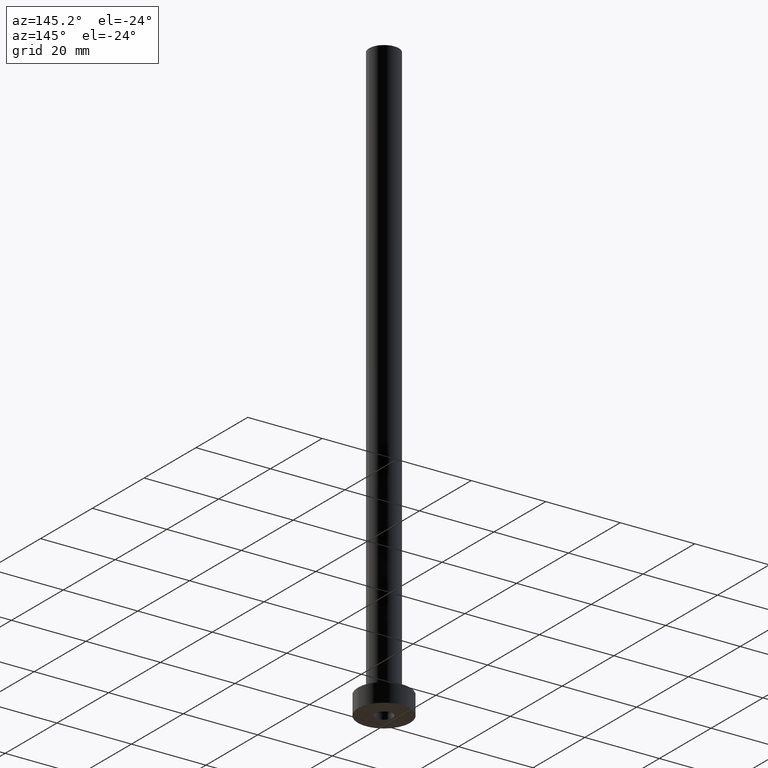
[diagram: clean part render]
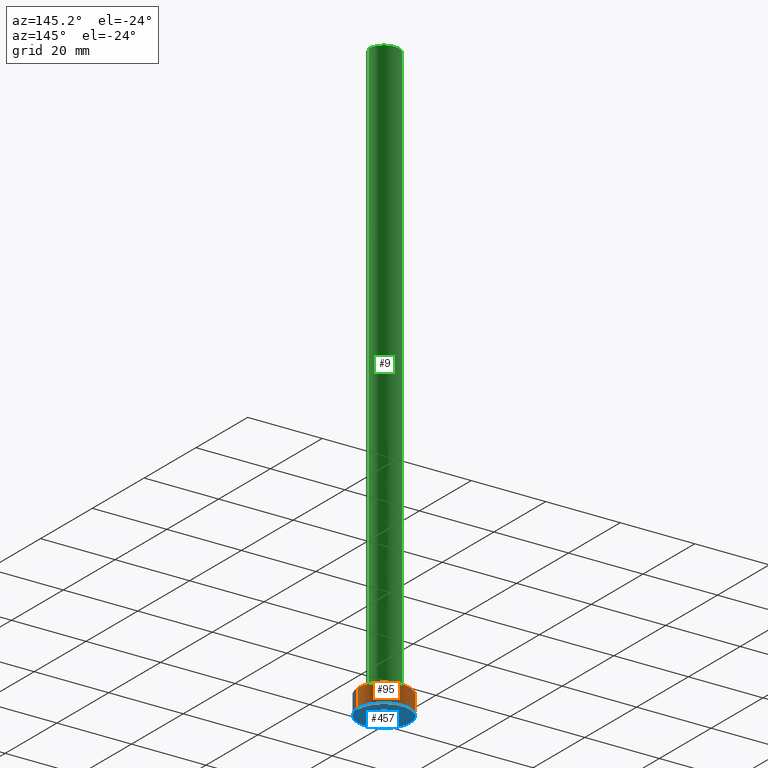
[diagram: same view with three faces highlighted in distinct colors, each labeled with its STEP entity id]
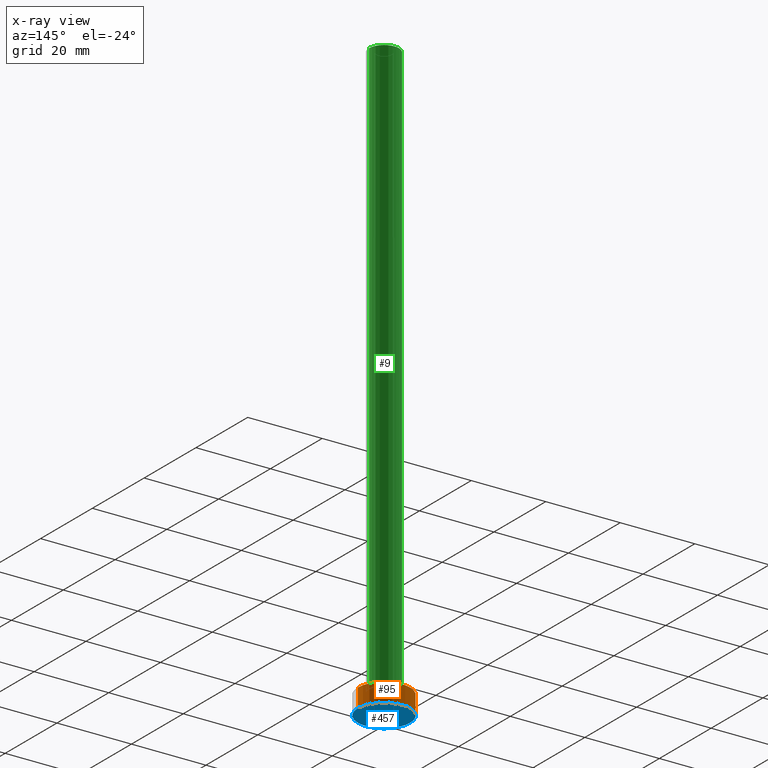
[diagram: x-ray of the same camera — body ghosted, the three highlighted faces saturated]
A machine part, auxiliary view with three faces highlighted in distinct colors.
The next image is the same camera in x-ray (body ghosted, the three faces saturated) — at least one of them is partly hidden behind the body in this view.
Their STEP definitions:

[orange] entity #95 — the highlighted cylindrical surface (edge-blend (fillet) strip) has radius 7 mm, axis along (-0, -0, -1).
#12 = EDGE_LOOP ( 'NONE', ( #386, #334, #247, #431 ) ) ;
#19 = CARTESIAN_POINT ( 'NONE',  ( 7.000000000000000000, 8.572527594031473190E-16, 0.000000000000000000 ) ) ;
#25 = DIRECTION ( 'NONE',  ( 1.000000000000000000, 0.000000000000000000, 0.000000000000000000 ) ) ;
#32 = CARTESIAN_POINT ( 'NONE',  ( 0.000000000000000000, 0.000000000000000000, 5.000000000000000000 ) ) ;
#38 = LINE ( 'NONE', #427, #402 ) ;
#95 = ADVANCED_FACE ( 'NONE', ( #459 ), #202, .T. ) ;
#103 = EDGE_CURVE ( 'NONE', #220, #111, #277, .T. ) ;
#111 = VERTEX_POINT ( 'NONE', #242 ) ;
#125 = CARTESIAN_POINT ( 'NONE',  ( 7.000000000000000000, 8.572527594031473190E-16, 5.000000000000000000 ) ) ;
#134 = DIRECTION ( 'NONE',  ( 0.000000000000000000, 0.000000000000000000, 1.000000000000000000 ) ) ;
#188 = VECTOR ( 'NONE', #366, 1000.000000000000000 ) ;
#191 = AXIS2_PLACEMENT_3D ( 'NONE', #32, #423, #25 ) ;
#196 = VERTEX_POINT ( 'NONE', #292 ) ;
#202 = CYLINDRICAL_SURFACE ( 'NONE', #315, 7.000000000000000000 ) ;
#220 = VERTEX_POINT ( 'NONE', #125 ) ;
#237 = AXIS2_PLACEMENT_3D ( 'NONE', #244, #134, #382 ) ;
#240 = DIRECTION ( 'NONE',  ( -0.000000000000000000, -0.000000000000000000, -1.000000000000000000 ) ) ;
#242 = CARTESIAN_POINT ( 'NONE',  ( -7.000000000000000000, 0.000000000000000000, 5.000000000000000000 ) ) ;
#244 = CARTESIAN_POINT ( 'NONE',  ( 0.000000000000000000, 0.000000000000000000, 0.000000000000000000 ) ) ;
#247 = ORIENTED_EDGE ( 'NONE', *, *, #353, .T. ) ;
#277 = CIRCLE ( 'NONE', #191, 7.000000000000000000 ) ;
#280 = DIRECTION ( 'NONE',  ( -1.000000000000000000, 0.000000000000000000, 0.000000000000000000 ) ) ;
#288 = DIRECTION ( 'NONE',  ( -0.000000000000000000, -0.000000000000000000, -1.000000000000000000 ) ) ;
#292 = CARTESIAN_POINT ( 'NONE',  ( -7.000000000000000000, 0.000000000000000000, 0.000000000000000000 ) ) ;
#296 = VERTEX_POINT ( 'NONE', #19 ) ;
#315 = AXIS2_PLACEMENT_3D ( 'NONE', #354, #240, #280 ) ;
#334 = ORIENTED_EDGE ( 'NONE', *, *, #425, .T. ) ;
#353 = EDGE_CURVE ( 'NONE', #296, #196, #365, .T. ) ;
#354 = CARTESIAN_POINT ( 'NONE',  ( 0.000000000000000000, 0.000000000000000000, 5.000000000000000000 ) ) ;
#365 = CIRCLE ( 'NONE', #237, 7.000000000000000000 ) ;
#366 = DIRECTION ( 'NONE',  ( -0.000000000000000000, -0.000000000000000000, -1.000000000000000000 ) ) ;
#382 = DIRECTION ( 'NONE',  ( 1.000000000000000000, 0.000000000000000000, 0.000000000000000000 ) ) ;
#386 = ORIENTED_EDGE ( 'NONE', *, *, #103, .F. ) ;
#393 = LINE ( 'NONE', #435, #188 ) ;
#402 = VECTOR ( 'NONE', #288, 1000.000000000000000 ) ;
#404 = EDGE_CURVE ( 'NONE', #111, #196, #393, .T. ) ;
#423 = DIRECTION ( 'NONE',  ( 0.000000000000000000, 0.000000000000000000, 1.000000000000000000 ) ) ;
#425 = EDGE_CURVE ( 'NONE', #220, #296, #38, .T. ) ;
#427 = CARTESIAN_POINT ( 'NONE',  ( 7.000000000000000000, 8.572527594031473190E-16, 5.000000000000000000 ) ) ;
#431 = ORIENTED_EDGE ( 'NONE', *, *, #404, .F. ) ;
#435 = CARTESIAN_POINT ( 'NONE',  ( -7.000000000000000000, 0.000000000000000000, 5.000000000000000000 ) ) ;
#459 = FACE_OUTER_BOUND ( 'NONE', #12, .T. ) ;

[blue] entity #457 — the highlighted planar face has unit normal (0, 0, 1).
#1 = DIRECTION ( 'NONE',  ( 0.000000000000000000, 0.000000000000000000, 1.000000000000000000 ) ) ;
#7 = EDGE_LOOP ( 'NONE', ( #340, #173 ) ) ;
#11 = DIRECTION ( 'NONE',  ( 1.000000000000000000, 0.000000000000000000, 0.000000000000000000 ) ) ;
#14 = ORIENTED_EDGE ( 'NONE', *, *, #118, .F. ) ;
#19 = CARTESIAN_POINT ( 'NONE',  ( 7.000000000000000000, 8.572527594031473190E-16, 0.000000000000000000 ) ) ;
#31 = FACE_BOUND ( 'NONE', #331, .T. ) ;
#45 = PLANE ( 'NONE',  #355 ) ;
#50 = AXIS2_PLACEMENT_3D ( 'NONE', #330, #286, #11 ) ;
#68 = CARTESIAN_POINT ( 'NONE',  ( 0.000000000000000000, 0.000000000000000000, 0.000000000000000000 ) ) ;
#105 = FACE_OUTER_BOUND ( 'NONE', #7, .T. ) ;
#107 = CARTESIAN_POINT ( 'NONE',  ( 0.000000000000000000, 0.000000000000000000, 0.000000000000000000 ) ) ;
#110 = CIRCLE ( 'NONE', #233, 2.250000000000000000 ) ;
#118 = EDGE_CURVE ( 'NONE', #157, #429, #110, .T. ) ;
#134 = DIRECTION ( 'NONE',  ( 0.000000000000000000, 0.000000000000000000, 1.000000000000000000 ) ) ;
#138 = ORIENTED_EDGE ( 'NONE', *, *, #166, .F. ) ;
#155 = EDGE_CURVE ( 'NONE', #196, #296, #385, .T. ) ;
#157 = VERTEX_POINT ( 'NONE', #251 ) ;
#166 = EDGE_CURVE ( 'NONE', #429, #157, #422, .T. ) ;
#169 = CARTESIAN_POINT ( 'NONE',  ( -2.250000000000000000, 0.000000000000000000, 0.000000000000000000 ) ) ;
#170 = DIRECTION ( 'NONE',  ( -0.000000000000000000, -0.000000000000000000, -1.000000000000000000 ) ) ;
#173 = ORIENTED_EDGE ( 'NONE', *, *, #353, .F. ) ;
#180 = AXIS2_PLACEMENT_3D ( 'NONE', #321, #1, #219 ) ;
#196 = VERTEX_POINT ( 'NONE', #292 ) ;
#205 = DIRECTION ( 'NONE',  ( 1.000000000000000000, 0.000000000000000000, 0.000000000000000000 ) ) ;
#209 = DIRECTION ( 'NONE',  ( 0.000000000000000000, 0.000000000000000000, 1.000000000000000000 ) ) ;
#219 = DIRECTION ( 'NONE',  ( 1.000000000000000000, 0.000000000000000000, 0.000000000000000000 ) ) ;
#233 = AXIS2_PLACEMENT_3D ( 'NONE', #68, #170, #205 ) ;
#237 = AXIS2_PLACEMENT_3D ( 'NONE', #244, #134, #382 ) ;
#244 = CARTESIAN_POINT ( 'NONE',  ( 0.000000000000000000, 0.000000000000000000, 0.000000000000000000 ) ) ;
#251 = CARTESIAN_POINT ( 'NONE',  ( 2.250000000000000000, 2.755455298081544285E-16, 0.000000000000000000 ) ) ;
#286 = DIRECTION ( 'NONE',  ( -0.000000000000000000, -0.000000000000000000, -1.000000000000000000 ) ) ;
#292 = CARTESIAN_POINT ( 'NONE',  ( -7.000000000000000000, 0.000000000000000000, 0.000000000000000000 ) ) ;
#296 = VERTEX_POINT ( 'NONE', #19 ) ;
#321 = CARTESIAN_POINT ( 'NONE',  ( 0.000000000000000000, 0.000000000000000000, 0.000000000000000000 ) ) ;
#329 = DIRECTION ( 'NONE',  ( 1.000000000000000000, 0.000000000000000000, -0.000000000000000000 ) ) ;
#330 = CARTESIAN_POINT ( 'NONE',  ( 0.000000000000000000, 0.000000000000000000, 0.000000000000000000 ) ) ;
#331 = EDGE_LOOP ( 'NONE', ( #138, #14 ) ) ;
#340 = ORIENTED_EDGE ( 'NONE', *, *, #155, .F. ) ;
#353 = EDGE_CURVE ( 'NONE', #296, #196, #365, .T. ) ;
#355 = AXIS2_PLACEMENT_3D ( 'NONE', #107, #209, #329 ) ;
#365 = CIRCLE ( 'NONE', #237, 7.000000000000000000 ) ;
#382 = DIRECTION ( 'NONE',  ( 1.000000000000000000, 0.000000000000000000, 0.000000000000000000 ) ) ;
#385 = CIRCLE ( 'NONE', #180, 7.000000000000000000 ) ;
#422 = CIRCLE ( 'NONE', #50, 2.250000000000000000 ) ;
#429 = VERTEX_POINT ( 'NONE', #169 ) ;
#457 = ADVANCED_FACE ( 'NONE', ( #31, #105 ), #45, .F. ) ;

[green] entity #9 — the highlighted cylindrical surface (edge-blend (fillet) strip) has radius 4 mm, axis along (-0, -0, -1).
#9 = ADVANCED_FACE ( 'NONE', ( #345 ), #22, .T. ) ;
#16 = DIRECTION ( 'NONE',  ( -1.000000000000000000, 0.000000000000000000, 0.000000000000000000 ) ) ;
#17 = AXIS2_PLACEMENT_3D ( 'NONE', #246, #389, #207 ) ;
#22 = CYLINDRICAL_SURFACE ( 'NONE', #346, 4.000000000000000000 ) ;
#37 = VERTEX_POINT ( 'NONE', #348 ) ;
#39 = VERTEX_POINT ( 'NONE', #454 ) ;
#77 = EDGE_CURVE ( 'NONE', #264, #37, #359, .T. ) ;
#109 = ORIENTED_EDGE ( 'NONE', *, *, #124, .T. ) ;
#117 = ORIENTED_EDGE ( 'NONE', *, *, #343, .T. ) ;
#120 = VERTEX_POINT ( 'NONE', #320 ) ;
#122 = DIRECTION ( 'NONE',  ( -0.000000000000000000, -0.000000000000000000, -1.000000000000000000 ) ) ;
#123 = VECTOR ( 'NONE', #317, 1000.000000000000000 ) ;
#124 = EDGE_CURVE ( 'NONE', #120, #39, #290, .T. ) ;
#129 = VECTOR ( 'NONE', #269, 1000.000000000000000 ) ;
#130 = CARTESIAN_POINT ( 'NONE',  ( 0.000000000000000000, 0.000000000000000000, 5.500000000000005329 ) ) ;
#132 = LINE ( 'NONE', #281, #123 ) ;
#133 = DIRECTION ( 'NONE',  ( 0.000000000000000000, 0.000000000000000000, 1.000000000000000000 ) ) ;
#156 = LINE ( 'NONE', #446, #129 ) ;
#187 = ORIENTED_EDGE ( 'NONE', *, *, #306, .F. ) ;
#207 = DIRECTION ( 'NONE',  ( 1.000000000000000000, 0.000000000000000000, 0.000000000000000000 ) ) ;
#230 = ORIENTED_EDGE ( 'NONE', *, *, #77, .F. ) ;
#246 = CARTESIAN_POINT ( 'NONE',  ( 0.000000000000000000, 0.000000000000000000, 160.0000000000000000 ) ) ;
#264 = VERTEX_POINT ( 'NONE', #302 ) ;
#269 = DIRECTION ( 'NONE',  ( -0.000000000000000000, -0.000000000000000000, -1.000000000000000000 ) ) ;
#275 = DIRECTION ( 'NONE',  ( 1.000000000000000000, 0.000000000000000000, 0.000000000000000000 ) ) ;
#281 = CARTESIAN_POINT ( 'NONE',  ( 4.000000000000000000, 4.898587196589412829E-16, 160.0000000000000000 ) ) ;
#290 = CIRCLE ( 'NONE', #351, 4.000000000000000000 ) ;
#302 = CARTESIAN_POINT ( 'NONE',  ( 4.000000000000000000, 4.898587196589412829E-16, 160.0000000000000000 ) ) ;
#306 = EDGE_CURVE ( 'NONE', #37, #39, #156, .T. ) ;
#317 = DIRECTION ( 'NONE',  ( -0.000000000000000000, -0.000000000000000000, -1.000000000000000000 ) ) ;
#320 = CARTESIAN_POINT ( 'NONE',  ( 4.000000000000000000, 4.898587196589412829E-16, 5.500000000000005329 ) ) ;
#337 = CARTESIAN_POINT ( 'NONE',  ( 0.000000000000000000, 0.000000000000000000, 160.0000000000000000 ) ) ;
#343 = EDGE_CURVE ( 'NONE', #264, #120, #132, .T. ) ;
#345 = FACE_OUTER_BOUND ( 'NONE', #380, .T. ) ;
#346 = AXIS2_PLACEMENT_3D ( 'NONE', #337, #122, #16 ) ;
#348 = CARTESIAN_POINT ( 'NONE',  ( -4.000000000000000000, 0.000000000000000000, 160.0000000000000000 ) ) ;
#351 = AXIS2_PLACEMENT_3D ( 'NONE', #130, #133, #275 ) ;
#359 = CIRCLE ( 'NONE', #17, 4.000000000000000000 ) ;
#380 = EDGE_LOOP ( 'NONE', ( #230, #117, #109, #187 ) ) ;
#389 = DIRECTION ( 'NONE',  ( 0.000000000000000000, 0.000000000000000000, 1.000000000000000000 ) ) ;
#446 = CARTESIAN_POINT ( 'NONE',  ( -4.000000000000000000, 0.000000000000000000, 160.0000000000000000 ) ) ;
#454 = CARTESIAN_POINT ( 'NONE',  ( -4.000000000000000000, 0.000000000000000000, 5.500000000000005329 ) ) ;